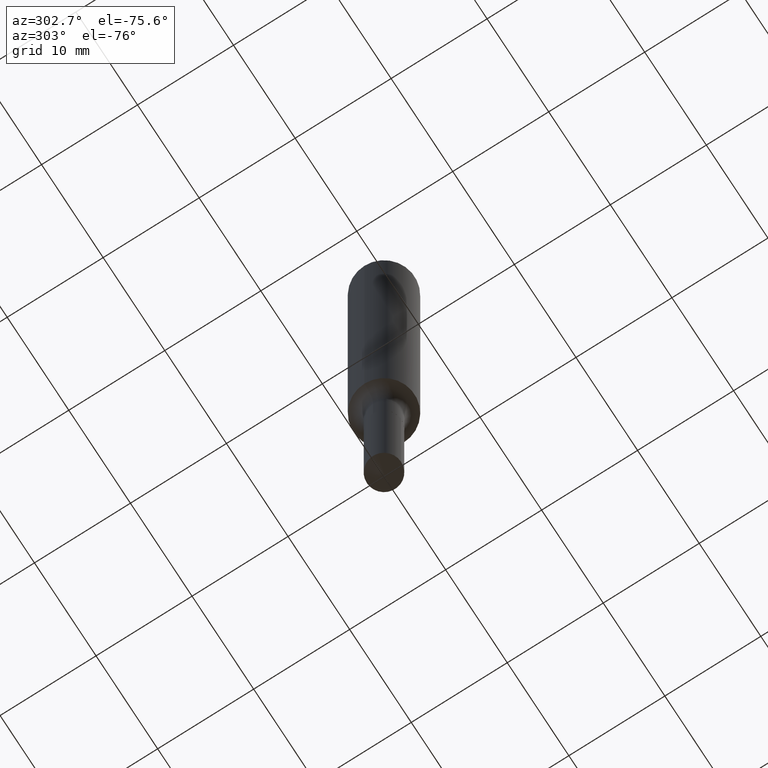
[diagram: clean part render]
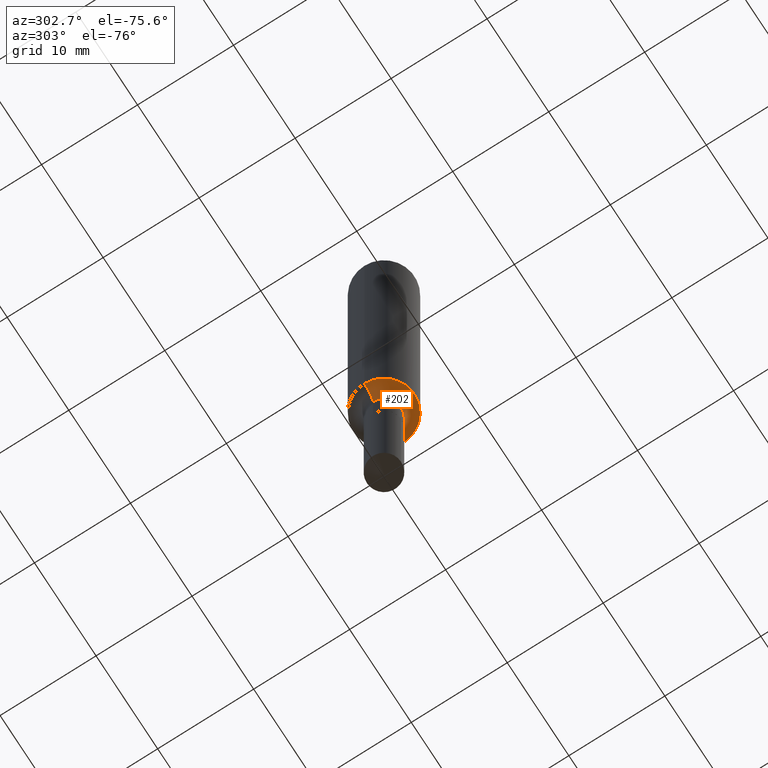
[diagram: same view with one face highlighted and labeled with its STEP entity id]
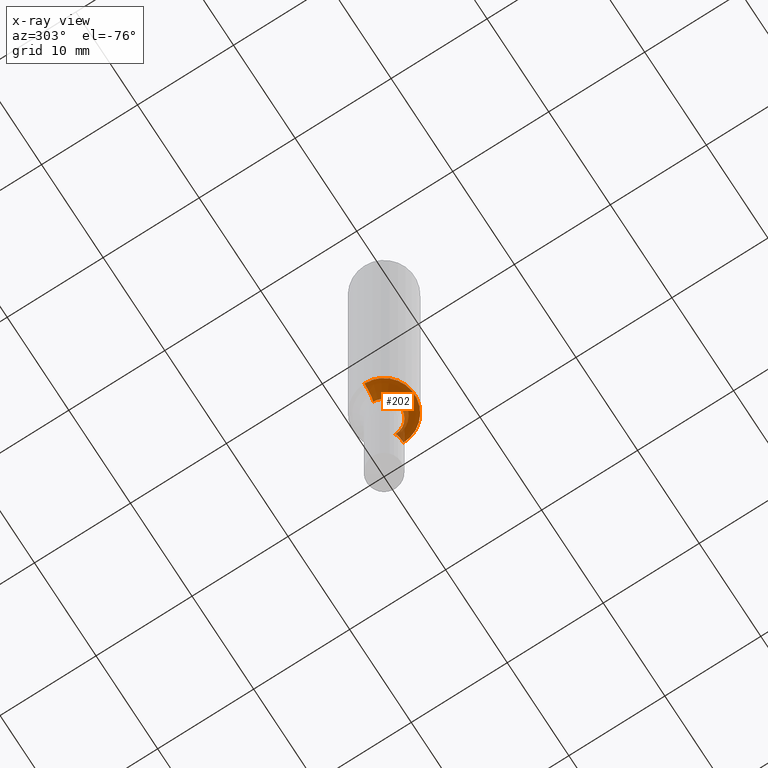
[diagram: x-ray of the same camera — body ghosted, the highlighted face saturated]
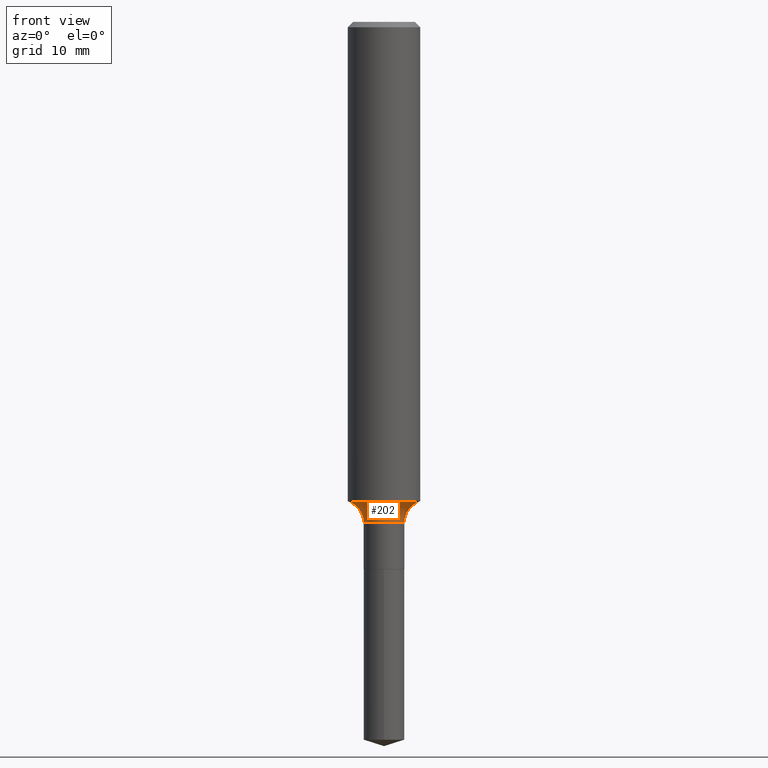
[diagram: same view with one face highlighted and labeled with its STEP entity id]
A machine part, auxiliary view. The second image highlights one B-rep face of the part: STEP entity #202.
The next image is the same camera in x-ray: the body ghosted, the highlighted face saturated — about 4% of this face is hidden behind the body in this view.
A second angle (front view) of the same face is appended — the face is thin or edge-on in the first view.
In plain terms, the highlighted toroidal blend (fillet) surface has major radius 3.7655 mm and minor (blend) radius 1.9812 mm.
Its self-contained STEP definition (entity closure, byte-faithful):
#22 = DIRECTION ( 'NONE',  ( 1.000000000000000000, -6.982962677686267499E-15, 0.000000000000000000 ) ) ;
#36 = EDGE_CURVE ( 'NONE', #469, #271, #101, .T. ) ;
#65 = ORIENTED_EDGE ( 'NONE', *, *, #483, .F. ) ;
#101 = CIRCLE ( 'NONE', #367, 0.07024999999999999301 ) ;
#123 = CIRCLE ( 'NONE', #304, 0.07799999999999995826 ) ;
#127 = DIRECTION ( 'NONE',  ( -2.445468806185136597E-29, 3.491481338843145583E-15, 1.000000000000000000 ) ) ;
#144 = CARTESIAN_POINT ( 'NONE',  ( 0.1482499999999999929, -7.071646303692904335E-15, -1.728900000000000325 ) ) ;
#149 = DIRECTION ( 'NONE',  ( -2.445468806185136597E-29, 3.491481338843145583E-15, 1.000000000000000000 ) ) ;
#158 = CARTESIAN_POINT ( 'NONE',  ( 0.1250000000000001388, -6.649336746390085607E-15, -1.654445735515015947 ) ) ;
#170 = EDGE_CURVE ( 'NONE', #392, #271, #357, .T. ) ;
#175 = DIRECTION ( 'NONE',  ( 1.000000000000000000, -6.982962677686269077E-15, 4.883557194083114583E-29 ) ) ;
#181 = EDGE_CURVE ( 'NONE', #421, #469, #123, .T. ) ;
#183 = AXIS2_PLACEMENT_3D ( 'NONE', #266, #149, #175 ) ;
#202 = ADVANCED_FACE ( 'NONE', ( #485 ), #375, .F. ) ;
#203 = EDGE_LOOP ( 'NONE', ( #65, #274, #425, #431 ) ) ;
#219 = DIRECTION ( 'NONE',  ( -1.000000000000000000, 7.105427357601001859E-15, 0.000000000000000000 ) ) ;
#223 = DIRECTION ( 'NONE',  ( -6.982962677686266711E-15, -1.000000000000000000, 3.491481338843145583E-15 ) ) ;
#229 = AXIS2_PLACEMENT_3D ( 'NONE', #144, #223, #337 ) ;
#241 = AXIS2_PLACEMENT_3D ( 'NONE', #313, #127, #22 ) ;
#266 = CARTESIAN_POINT ( 'NONE',  ( 4.227971019013483248E-29, -6.036422086725915643E-15, -1.728900000000000325 ) ) ;
#271 = VERTEX_POINT ( 'NONE', #372 ) ;
#274 = ORIENTED_EDGE ( 'NONE', *, *, #181, .T. ) ;
#287 = CARTESIAN_POINT ( 'NONE',  ( 4.227971019013483248E-29, -6.036422086725915643E-15, -1.728900000000000325 ) ) ;
#296 = CARTESIAN_POINT ( 'NONE',  ( -0.1482499999999999929, -4.983042480961567168E-15, -1.728900000000000325 ) ) ;
#304 = AXIS2_PLACEMENT_3D ( 'NONE', #296, #329, #219 ) ;
#313 = CARTESIAN_POINT ( 'NONE',  ( 4.045895437727996647E-29, -5.776466411679300691E-15, -1.654445735515015947 ) ) ;
#329 = DIRECTION ( 'NONE',  ( 7.105427357601001859E-15, 1.000000000000000000, -3.491481338843145583E-15 ) ) ;
#337 = DIRECTION ( 'NONE',  ( 1.000000000000000000, -6.982962677686261977E-15, 0.000000000000000000 ) ) ;
#345 = CARTESIAN_POINT ( 'NONE',  ( -0.1250000000000001388, -4.888287991979174669E-15, -1.654445735515015947 ) ) ;
#354 = CIRCLE ( 'NONE', #241, 0.1250000000000001943 ) ;
#357 = CIRCLE ( 'NONE', #229, 0.07799999999999995826 ) ;
#367 = AXIS2_PLACEMENT_3D ( 'NONE', #287, #434, #404 ) ;
#372 = CARTESIAN_POINT ( 'NONE',  ( 0.07024999999999999301, -6.526975214833375500E-15, -1.728900000000000325 ) ) ;
#375 = TOROIDAL_SURFACE ( 'NONE', #183, 0.1482499999999999929, 0.07799999999999995826 ) ;
#392 = VERTEX_POINT ( 'NONE', #158 ) ;
#396 = CARTESIAN_POINT ( 'NONE',  ( -0.07024999999999999301, -5.818504636698260679E-15, -1.728900000000000325 ) ) ;
#404 = DIRECTION ( 'NONE',  ( 1.000000000000000000, -6.982962677686260400E-15, 0.000000000000000000 ) ) ;
#421 = VERTEX_POINT ( 'NONE', #345 ) ;
#425 = ORIENTED_EDGE ( 'NONE', *, *, #36, .T. ) ;
#431 = ORIENTED_EDGE ( 'NONE', *, *, #170, .F. ) ;
#434 = DIRECTION ( 'NONE',  ( -2.445468806185136597E-29, 3.491481338843145583E-15, 1.000000000000000000 ) ) ;
#469 = VERTEX_POINT ( 'NONE', #396 ) ;
#483 = EDGE_CURVE ( 'NONE', #421, #392, #354, .T. ) ;
#485 = FACE_OUTER_BOUND ( 'NONE', #203, .T. ) ;